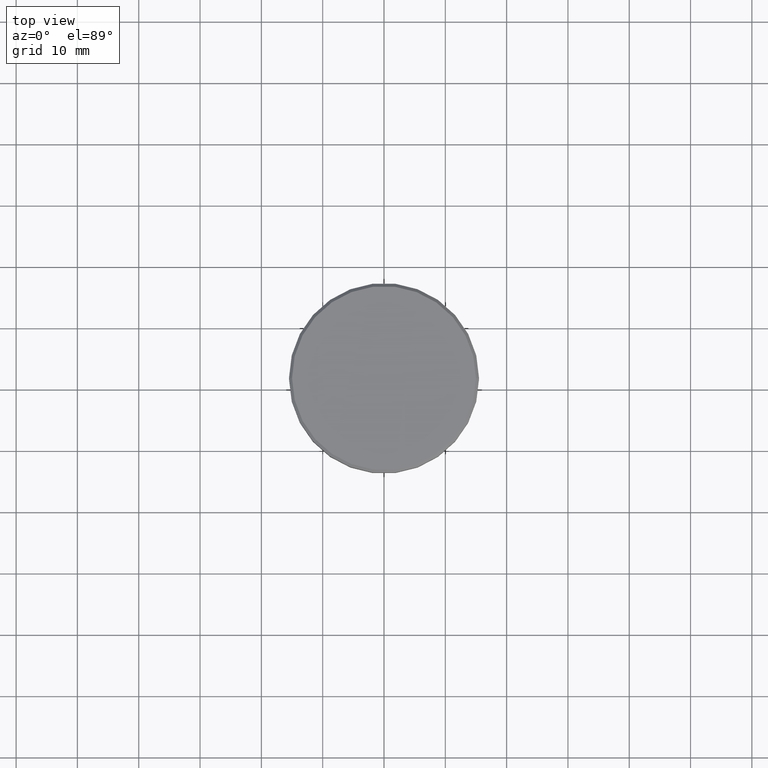
[diagram: clean part render]
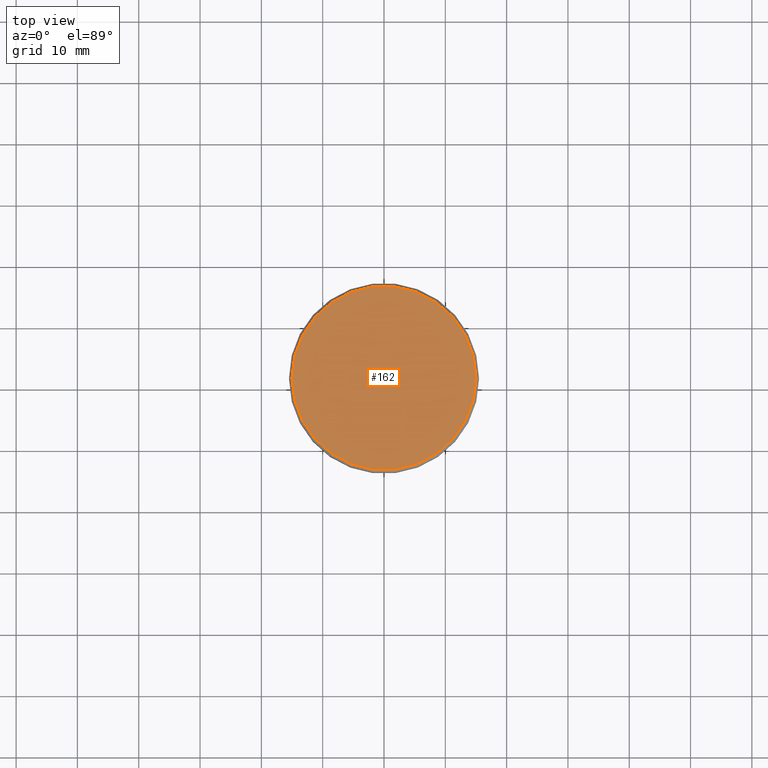
[diagram: same view with one face highlighted and labeled with its STEP entity id]
A machine part, top view. The second image highlights one B-rep face of the part: STEP entity #162.
In plain terms, the highlighted planar face has unit normal (0, -0, 1).
Its self-contained STEP definition (entity closure, byte-faithful):
#1 = DIRECTION ( 'NONE',  ( 1.000000000000000000, 0.000000000000000000, 0.000000000000000000 ) ) ;
#4 = EDGE_CURVE ( 'NONE', #784, #226, #606, .T. ) ;
#54 = AXIS2_PLACEMENT_3D ( 'NONE', #63, #445, #833 ) ;
#63 = CARTESIAN_POINT ( 'NONE',  ( 0.000000000000000000, 0.000000000000000000, 0.000000000000000000 ) ) ;
#94 = CARTESIAN_POINT ( 'NONE',  ( -14.99999999999998579, 0.000000000000000000, 0.000000000000000000 ) ) ;
#95 = DIRECTION ( 'NONE',  ( -0.000000000000000000, -0.000000000000000000, 1.000000000000000000 ) ) ;
#110 = CARTESIAN_POINT ( 'NONE',  ( 14.99999999999998579, 1.867586368699712587E-15, 0.000000000000000000 ) ) ;
#157 = PLANE ( 'NONE',  #54 ) ;
#162 = ADVANCED_FACE ( 'NONE', ( #248 ), #157, .T. ) ;
#201 = ORIENTED_EDGE ( 'NONE', *, *, #414, .T. ) ;
#226 = VERTEX_POINT ( 'NONE', #110 ) ;
#248 = FACE_OUTER_BOUND ( 'NONE', #949, .T. ) ;
#296 = DIRECTION ( 'NONE',  ( 1.000000000000000000, 0.000000000000000000, 0.000000000000000000 ) ) ;
#297 = ORIENTED_EDGE ( 'NONE', *, *, #4, .T. ) ;
#337 = DIRECTION ( 'NONE',  ( -0.000000000000000000, -0.000000000000000000, 1.000000000000000000 ) ) ;
#414 = EDGE_CURVE ( 'NONE', #226, #784, #561, .T. ) ;
#445 = DIRECTION ( 'NONE',  ( 0.000000000000000000, -0.000000000000000000, 1.000000000000000000 ) ) ;
#558 = AXIS2_PLACEMENT_3D ( 'NONE', #1146, #337, #296 ) ;
#561 = CIRCLE ( 'NONE', #1140, 14.99999999999998579 ) ;
#606 = CIRCLE ( 'NONE', #558, 14.99999999999998579 ) ;
#784 = VERTEX_POINT ( 'NONE', #94 ) ;
#833 = DIRECTION ( 'NONE',  ( 1.000000000000000000, 0.000000000000000000, 0.000000000000000000 ) ) ;
#929 = CARTESIAN_POINT ( 'NONE',  ( 0.000000000000000000, 0.000000000000000000, 0.000000000000000000 ) ) ;
#949 = EDGE_LOOP ( 'NONE', ( #297, #201 ) ) ;
#1140 = AXIS2_PLACEMENT_3D ( 'NONE', #929, #95, #1 ) ;
#1146 = CARTESIAN_POINT ( 'NONE',  ( 0.000000000000000000, 0.000000000000000000, 0.000000000000000000 ) ) ;